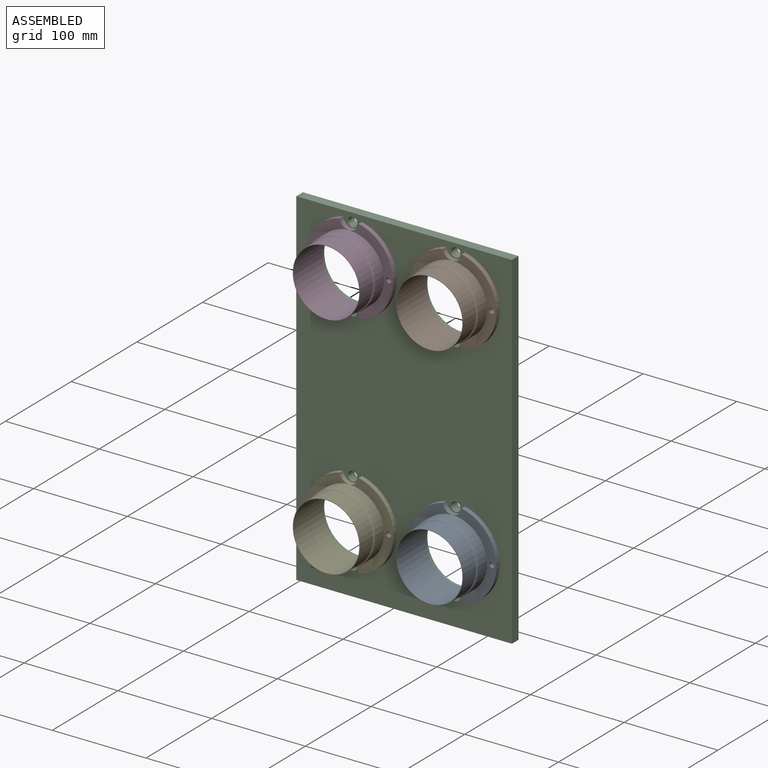
[diagram: assembled view]
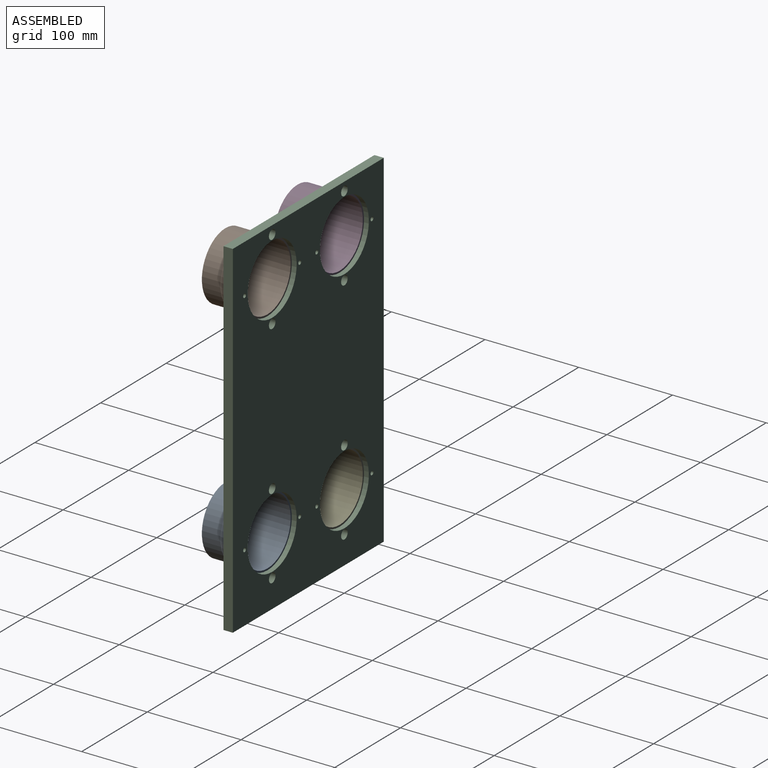
[diagram: assembled view, second angle]
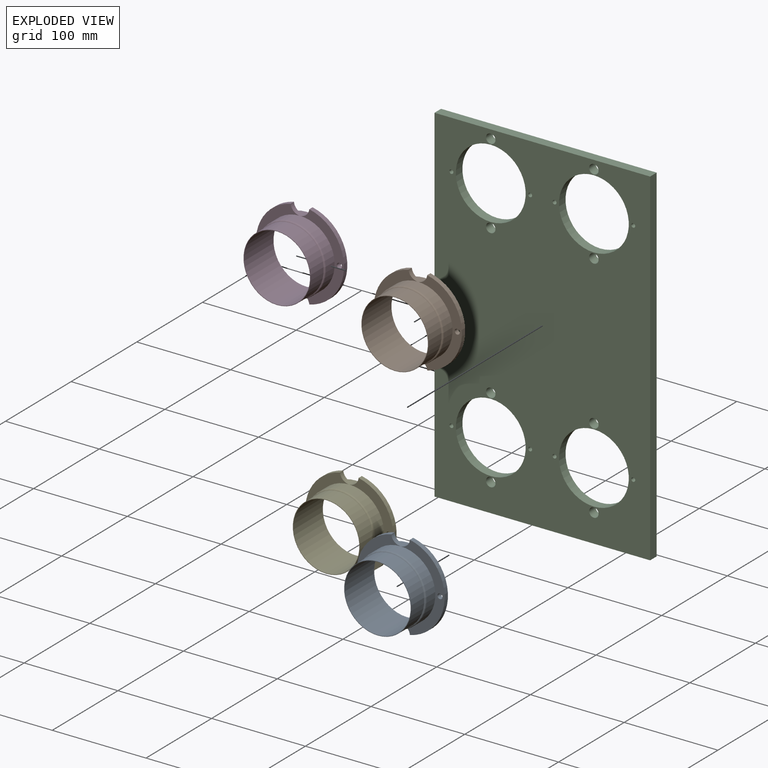
[diagram: exploded view]
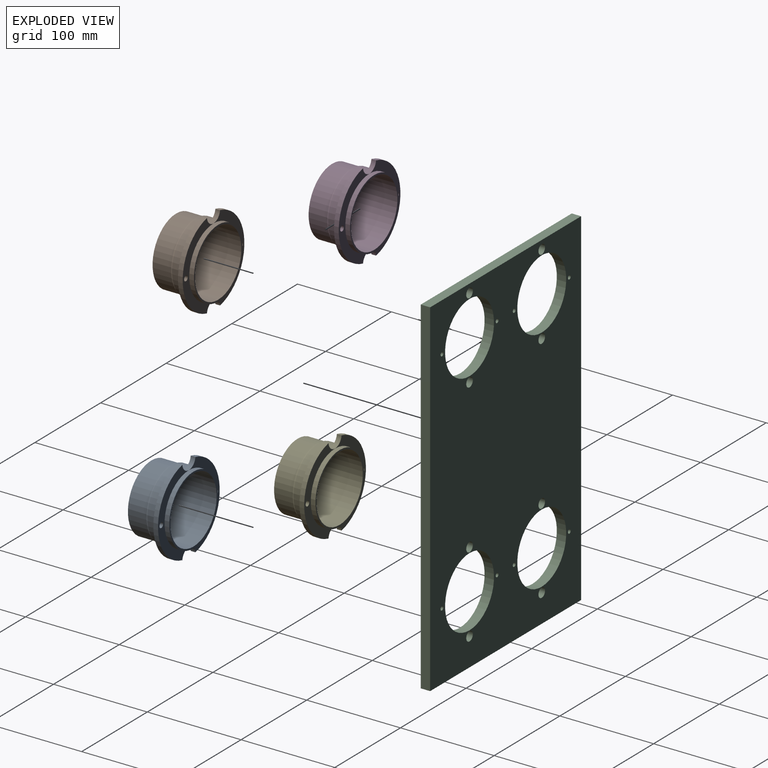
[diagram: exploded view, second angle]
ASSEMBLY  parts=5 mates=3
PART A: 17 faces, bbox 45x94x91.9 mm
  f0: cylinder r=47mm len=91.87mm, axis (1,0,0), area 638.1mm2, adj f1,f8,f13,f14
  f1: plane 91.87x47mm, normal (-1,0,0), area 1145.7mm2, adj f0,f10,f13,f14,f15
  f2: plane 91.87x47mm, normal (-1,0,0), area 1145.7mm2, adj f9,f10,f13,f14,f16
  f3: plane 91.87x47mm, normal (1,0,0), area 1145.7mm2, adj f7,f9,f13,f14,f16
  f4: cylinder r=35.75mm len=71.5mm, axis (1,0,0), area 4492.5mm2, adj f5,f12
  f5: plane 71.5x71.5mm, normal (-1,0,0), area 111.5mm2, adj f4,f11
  f6: plane 74x74mm, normal (1,0,0), area 397.2mm2, adj f7,f11
  f7: cylinder r=37mm len=74mm, axis (1,0,0), area 1162.4mm2, adj f3,f6,f8
  f8: plane 91.87x47mm, normal (1,0,0), area 1145.7mm2, adj f0,f7,f13,f14,f15
  f9: cylinder r=47mm len=91.87mm, axis (1,0,0), area 638.1mm2, adj f2,f3,f13,f14
  f10: cylinder r=37mm len=74mm, axis (1,0,0), area 3056.1mm2, adj f1,f2,f12
  f11: cylinder r=35.25mm len=70.5mm, axis (-1,0,0), area 9966.7mm2, adj f5,f6
  f12: torus R=35mm, axis (-1,0,0), area 545.1mm2, adj f4,f10
  f13: cylinder r=10mm len=19.89mm, axis (-1,0,0), area 146.4mm2, adj f0,f1,f2,f3,f8,f9
  f14: cylinder r=10mm len=19.89mm, axis (-1,0,0), area 146.4mm2, adj f0,f1,f2,f3,f8,f9
  f15: cylinder r=2.75mm len=5.5mm, axis (-1,0,0), area 86.4mm2, adj f1,f8
  f16: cylinder r=2.75mm len=5.5mm, axis (-1,0,0), area 86.4mm2, adj f2,f3
PART B: same geometry as A
PART C: 26 faces, bbox 230x10x370 mm
  f0: plane 230x10mm, normal (0,0,-1), area 2300mm2, adj f1,f15,f16,f17
  f1: plane 370x10mm, normal (1,0,0), area 3700mm2, adj f0,f2,f16,f17
  f2: plane 230x10mm, normal (0,0,1), area 2300mm2, adj f1,f15,f16,f17
  f3: cylinder r=37.25mm len=74.5mm, axis (0,1,0), area 2340.5mm2, adj f16,f17
  f4: cylinder r=37.25mm len=74.5mm, axis (0,1,0), area 2340.5mm2, adj f16,f17
  f5: cylinder r=37.25mm len=74.5mm, axis (0,1,0), area 2340.5mm2, adj f16,f17
  f6: cylinder r=37.25mm len=74.5mm, axis (0,1,0), area 2340.5mm2, adj f16,f17
  f7: cylinder r=5mm len=10mm, axis (0,1,0), area 314.2mm2, adj f16,f17
  f8: cylinder r=5mm len=10mm, axis (0,1,0), area 314.2mm2, adj f16,f17
  f9: cylinder r=5mm len=10mm, axis (0,1,0), area 314.2mm2, adj f16,f17
  f10: cylinder r=5mm len=10mm, axis (0,1,0), area 314.2mm2, adj f16,f17
  f11: cylinder r=5mm len=10mm, axis (0,1,0), area 314.2mm2, adj f16,f17
  f12: cylinder r=5mm len=10mm, axis (0,1,0), area 314.2mm2, adj f16,f17
  f13: cylinder r=5mm len=10mm, axis (0,1,0), area 314.2mm2, adj f16,f17
  f14: cylinder r=5mm len=10mm, axis (0,1,0), area 314.2mm2, adj f16,f17
  f15: plane 370x10mm, normal (-1,0,0), area 3700mm2, adj f0,f2,f16,f17
  f16: plane 370x230mm, normal (0,-1,0), area 66924.2mm2, adj f0,f1,f2,f3,f4,f5,f6,f7
  f17: plane 370x230mm, normal (0,1,0), area 66924.2mm2, adj f0,f1,f2,f3,f4,f5,f6,f7
  f18: cylinder r=2.1mm len=10mm, axis (0,1,0), area 131.9mm2, adj f16,f17
  f19: cylinder r=2.1mm len=10mm, axis (0,1,0), area 131.9mm2, adj f16,f17
  f20: cylinder r=2.1mm len=10mm, axis (0,1,0), area 131.9mm2, adj f16,f17
  f21: cylinder r=2.1mm len=10mm, axis (0,1,0), area 131.9mm2, adj f16,f17
  f22: cylinder r=2.1mm len=10mm, axis (0,1,0), area 131.9mm2, adj f16,f17
  f23: cylinder r=2.1mm len=10mm, axis (0,1,0), area 131.9mm2, adj f16,f17
  f24: cylinder r=2.1mm len=10mm, axis (0,1,0), area 131.9mm2, adj f16,f17
  f25: cylinder r=2.1mm len=10mm, axis (0,1,0), area 131.9mm2, adj f16,f17
PART D: same geometry as A
PART E: same geometry as A
PLACE A rot(axis=(0,0,1),90deg) t=(174.52,25.39,-95.17)mm
PLACE B rot(axis=(0,0,1),90deg) t=(174.52,25.39,149.83)mm
PLACE C t=(119.52,75.39,-18.92)mm
PLACE D rot(axis=(0,0,1),90deg) t=(64.52,25.39,149.83)mm
PLACE E rot(axis=(0,0,1),90deg) t=(64.52,25.39,-95.17)mm
MATE revolute A.f0 <-> C.f6  axis (0,1,0) through (174.52,65.39,-130.92)mm
MATE revolute E.f0 <-> C.f5  axis (0,1,0) through (64.52,65.39,-130.92)mm
MATE revolute C.f3 <-> B.f0  axis (0,-1,0) through (174.52,65.39,114.08)mm
